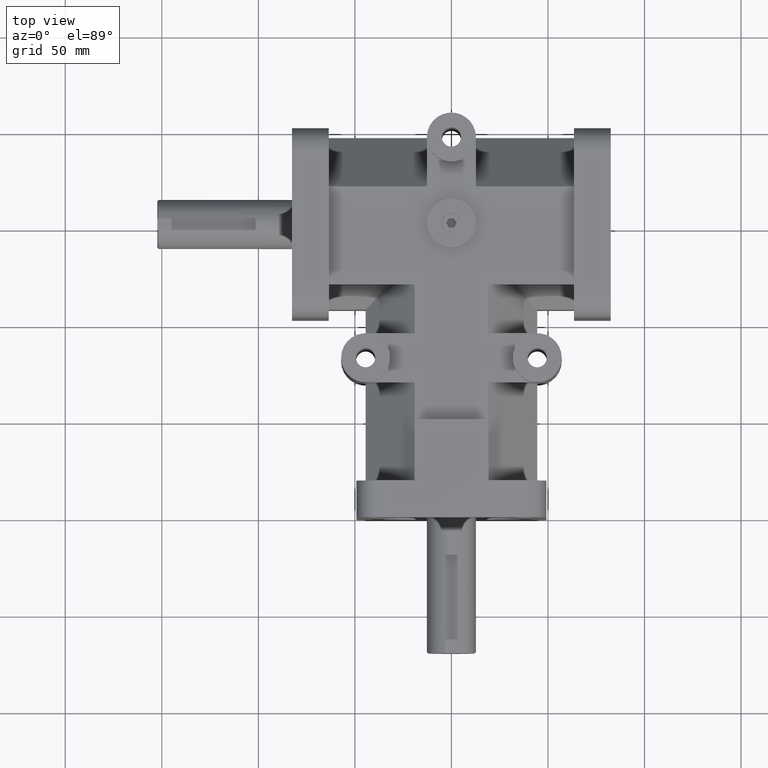
[diagram: clean part render]
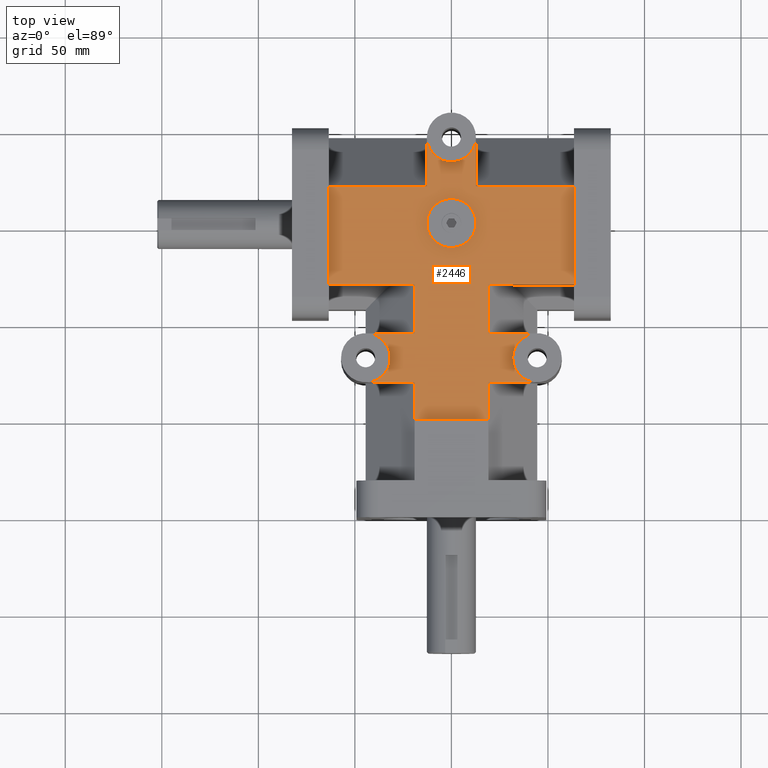
[diagram: same view with one face highlighted and labeled with its STEP entity id]
A machine part, top view. The second image highlights one B-rep face of the part: STEP entity #2446.
In plain terms, the highlighted planar face has unit normal (0, 0, 1).
Its self-contained STEP definition (entity closure, byte-faithful):
#70=FACE_BOUND('',#367,.T.);
#120=CIRCLE('',#2614,0.5);
#121=CIRCLE('',#2615,0.5);
#122=CIRCLE('',#2616,0.5);
#123=CIRCLE('',#2617,0.5);
#124=CIRCLE('',#2618,0.5);
#216=FACE_OUTER_BOUND('',#366,.T.);
#366=EDGE_LOOP('',(#1663,#1664,#1665,#1666,#1667,#1668,#1669,#1670,#1671,
#1672,#1673,#1674,#1675,#1676,#1677,#1678,#1679,#1680,#1681,#1682,#1683));
#367=EDGE_LOOP('',(#1684));
#553=LINE('',#3601,#803);
#556=LINE('',#3609,#806);
#562=LINE('',#3637,#812);
#570=LINE('',#3653,#820);
#571=LINE('',#3655,#821);
#572=LINE('',#3657,#822);
#573=LINE('',#3661,#823);
#574=LINE('',#3662,#824);
#575=LINE('',#3664,#825);
#576=LINE('',#3666,#826);
#577=LINE('',#3670,#827);
#578=LINE('',#3672,#828);
#579=LINE('',#3674,#829);
#580=LINE('',#3676,#830);
#581=LINE('',#3678,#831);
#582=LINE('',#3684,#832);
#583=LINE('',#3685,#833);
#803=VECTOR('',#2855,1.);
#806=VECTOR('',#2860,1.);
#812=VECTOR('',#2884,1.);
#820=VECTOR('',#2894,1.);
#821=VECTOR('',#2895,1.);
#822=VECTOR('',#2896,1.);
#823=VECTOR('',#2899,1.);
#824=VECTOR('',#2900,1.);
#825=VECTOR('',#2901,1.);
#826=VECTOR('',#2902,1.);
#827=VECTOR('',#2905,1.);
#828=VECTOR('',#2906,1.);
#829=VECTOR('',#2907,1.);
#830=VECTOR('',#2908,1.);
#831=VECTOR('',#2909,1.);
#832=VECTOR('',#2914,1.);
#833=VECTOR('',#2915,1.);
#1051=VERTEX_POINT('',#3595);
#1053=VERTEX_POINT('',#3599);
#1056=VERTEX_POINT('',#3606);
#1057=VERTEX_POINT('',#3608);
#1070=VERTEX_POINT('',#3636);
#1077=VERTEX_POINT('',#3652);
#1078=VERTEX_POINT('',#3654);
#1079=VERTEX_POINT('',#3656);
#1080=VERTEX_POINT('',#3658);
#1081=VERTEX_POINT('',#3660);
#1082=VERTEX_POINT('',#3663);
#1083=VERTEX_POINT('',#3665);
#1084=VERTEX_POINT('',#3667);
#1085=VERTEX_POINT('',#3669);
#1086=VERTEX_POINT('',#3671);
#1087=VERTEX_POINT('',#3673);
#1088=VERTEX_POINT('',#3675);
#1089=VERTEX_POINT('',#3677);
#1090=VERTEX_POINT('',#3679);
#1091=VERTEX_POINT('',#3681);
#1092=VERTEX_POINT('',#3683);
#1093=VERTEX_POINT('',#3686);
#1282=EDGE_CURVE('',#1051,#1053,#553,.T.);
#1285=EDGE_CURVE('',#1057,#1056,#556,.T.);
#1299=EDGE_CURVE('',#1070,#1057,#562,.T.);
#1307=EDGE_CURVE('',#1053,#1077,#570,.T.);
#1308=EDGE_CURVE('',#1078,#1077,#571,.T.);
#1309=EDGE_CURVE('',#1079,#1078,#572,.T.);
#1310=EDGE_CURVE('',#1079,#1080,#120,.T.);
#1311=EDGE_CURVE('',#1081,#1080,#573,.T.);
#1312=EDGE_CURVE('',#1070,#1081,#574,.T.);
#1313=EDGE_CURVE('',#1056,#1082,#575,.T.);
#1314=EDGE_CURVE('',#1083,#1082,#576,.T.);
#1315=EDGE_CURVE('',#1083,#1084,#121,.T.);
#1316=EDGE_CURVE('',#1085,#1084,#577,.T.);
#1317=EDGE_CURVE('',#1086,#1085,#578,.T.);
#1318=EDGE_CURVE('',#1086,#1087,#579,.T.);
#1319=EDGE_CURVE('',#1088,#1087,#580,.T.);
#1320=EDGE_CURVE('',#1089,#1088,#581,.T.);
#1321=EDGE_CURVE('',#1089,#1090,#122,.T.);
#1322=EDGE_CURVE('',#1090,#1091,#123,.T.);
#1323=EDGE_CURVE('',#1092,#1091,#582,.T.);
#1324=EDGE_CURVE('',#1092,#1051,#583,.T.);
#1325=EDGE_CURVE('',#1093,#1093,#124,.T.);
#1663=ORIENTED_EDGE('',*,*,#1307,.T.);
#1664=ORIENTED_EDGE('',*,*,#1308,.F.);
#1665=ORIENTED_EDGE('',*,*,#1309,.F.);
#1666=ORIENTED_EDGE('',*,*,#1310,.T.);
#1667=ORIENTED_EDGE('',*,*,#1311,.F.);
#1668=ORIENTED_EDGE('',*,*,#1312,.F.);
#1669=ORIENTED_EDGE('',*,*,#1299,.T.);
#1670=ORIENTED_EDGE('',*,*,#1285,.T.);
#1671=ORIENTED_EDGE('',*,*,#1313,.T.);
#1672=ORIENTED_EDGE('',*,*,#1314,.F.);
#1673=ORIENTED_EDGE('',*,*,#1315,.T.);
#1674=ORIENTED_EDGE('',*,*,#1316,.F.);
#1675=ORIENTED_EDGE('',*,*,#1317,.F.);
#1676=ORIENTED_EDGE('',*,*,#1318,.T.);
#1677=ORIENTED_EDGE('',*,*,#1319,.F.);
#1678=ORIENTED_EDGE('',*,*,#1320,.F.);
#1679=ORIENTED_EDGE('',*,*,#1321,.T.);
#1680=ORIENTED_EDGE('',*,*,#1322,.T.);
#1681=ORIENTED_EDGE('',*,*,#1323,.F.);
#1682=ORIENTED_EDGE('',*,*,#1324,.T.);
#1683=ORIENTED_EDGE('',*,*,#1282,.T.);
#1684=ORIENTED_EDGE('',*,*,#1325,.T.);
#2347=PLANE('',#2613);
#2446=ADVANCED_FACE('',(#216,#70),#2347,.T.);
#2613=AXIS2_PLACEMENT_3D('',#3651,#2892,#2893);
#2614=AXIS2_PLACEMENT_3D('',#3659,#2897,#2898);
#2615=AXIS2_PLACEMENT_3D('',#3668,#2903,#2904);
#2616=AXIS2_PLACEMENT_3D('',#3680,#2910,#2911);
#2617=AXIS2_PLACEMENT_3D('',#3682,#2912,#2913);
#2618=AXIS2_PLACEMENT_3D('',#3687,#2916,#2917);
#2855=DIRECTION('',(1.,0.,0.));
#2860=DIRECTION('',(1.,0.,0.));
#2884=DIRECTION('',(0.,-1.,0.));
#2892=DIRECTION('center_axis',(0.,0.,1.));
#2893=DIRECTION('ref_axis',(-1.,0.,0.));
#2894=DIRECTION('',(0.,1.,0.));
#2895=DIRECTION('',(1.,0.,0.));
#2896=DIRECTION('',(0.,-1.,0.));
#2897=DIRECTION('center_axis',(0.,0.,-1.));
#2898=DIRECTION('ref_axis',(1.,0.,0.));
#2899=DIRECTION('',(0.,1.,0.));
#2900=DIRECTION('',(1.,0.,0.));
#2901=DIRECTION('',(0.,-1.,0.));
#2902=DIRECTION('',(1.,0.,0.));
#2903=DIRECTION('center_axis',(0.,0.,-1.));
#2904=DIRECTION('ref_axis',(1.,0.,0.));
#2905=DIRECTION('',(-1.,0.,0.));
#2906=DIRECTION('',(0.,1.,0.));
#2907=DIRECTION('',(1.,0.,0.));
#2908=DIRECTION('',(0.,-1.,0.));
#2909=DIRECTION('',(-1.,0.,0.));
#2910=DIRECTION('center_axis',(0.,0.,-1.));
#2911=DIRECTION('ref_axis',(1.,0.,0.));
#2912=DIRECTION('center_axis',(0.,0.,-1.));
#2913=DIRECTION('ref_axis',(1.,0.,0.));
#2914=DIRECTION('',(1.,0.,0.));
#2915=DIRECTION('',(0.,1.,0.));
#2916=DIRECTION('center_axis',(0.,0.,-1.));
#2917=DIRECTION('ref_axis',(1.,0.,0.));
#3595=CARTESIAN_POINT('',(0.75,4.75,1.75));
#3599=CARTESIAN_POINT('',(2.5,4.75,1.75));
#3601=CARTESIAN_POINT('',(2.5,4.75,1.75));
#3606=CARTESIAN_POINT('',(-0.75,4.75,1.75));
#3608=CARTESIAN_POINT('',(-2.5,4.75,1.75));
#3609=CARTESIAN_POINT('',(2.5,4.75,1.75));
#3636=CARTESIAN_POINT('',(-2.5,6.75,1.75));
#3637=CARTESIAN_POINT('',(-2.5,4.27896341463415,1.75));
#3651=CARTESIAN_POINT('Origin',(5.06976461714945E-16,4.30792682926829,1.75));
#3652=CARTESIAN_POINT('',(2.5,6.75,1.75));
#3653=CARTESIAN_POINT('',(2.5,6.02896341463415,1.75));
#3654=CARTESIAN_POINT('',(0.500000000000001,6.75,1.75));
#3655=CARTESIAN_POINT('',(1.25,6.75,1.75));
#3656=CARTESIAN_POINT('',(0.5,7.75,1.75));
#3657=CARTESIAN_POINT('',(0.5,7.75,1.75));
#3658=CARTESIAN_POINT('',(-0.5,7.75,1.75));
#3659=CARTESIAN_POINT('Origin',(0.,7.75,1.75));
#3660=CARTESIAN_POINT('',(-0.5,6.75,1.75));
#3661=CARTESIAN_POINT('',(-0.5,7.75,1.75));
#3662=CARTESIAN_POINT('',(1.25,6.75,1.75));
#3663=CARTESIAN_POINT('',(-0.75,3.75,1.75));
#3664=CARTESIAN_POINT('',(-0.75,6.65396341463415,1.75));
#3665=CARTESIAN_POINT('',(-1.75,3.75,1.75));
#3666=CARTESIAN_POINT('',(-1.75,3.75,1.75));
#3667=CARTESIAN_POINT('',(-1.75,2.75,1.75));
#3668=CARTESIAN_POINT('Origin',(-1.75,3.25,1.75));
#3669=CARTESIAN_POINT('',(-0.75,2.75,1.75));
#3670=CARTESIAN_POINT('',(-1.75,2.75,1.75));
#3671=CARTESIAN_POINT('',(-0.75,2.,1.75));
#3672=CARTESIAN_POINT('',(-0.75,4.27896341463415,1.75));
#3673=CARTESIAN_POINT('',(0.75,2.,1.75));
#3674=CARTESIAN_POINT('',(0.375,2.,1.75));
#3675=CARTESIAN_POINT('',(0.75,2.75,1.75));
#3676=CARTESIAN_POINT('',(0.75,2.52896341463415,1.75));
#3677=CARTESIAN_POINT('',(1.75,2.75,1.75));
#3678=CARTESIAN_POINT('',(-1.75,2.75,1.75));
#3679=CARTESIAN_POINT('',(1.25,3.25,1.75));
#3680=CARTESIAN_POINT('Origin',(1.75,3.25,1.75));
#3681=CARTESIAN_POINT('',(1.75,3.75,1.75));
#3682=CARTESIAN_POINT('Origin',(1.75,3.25,1.75));
#3683=CARTESIAN_POINT('',(0.75,3.75,1.75));
#3684=CARTESIAN_POINT('',(0.500000000000001,3.75,1.75));
#3685=CARTESIAN_POINT('',(0.75,6.65396341463415,1.75));
#3686=CARTESIAN_POINT('',(-0.5,6.,1.75));
#3687=CARTESIAN_POINT('Origin',(0.,6.,1.75));